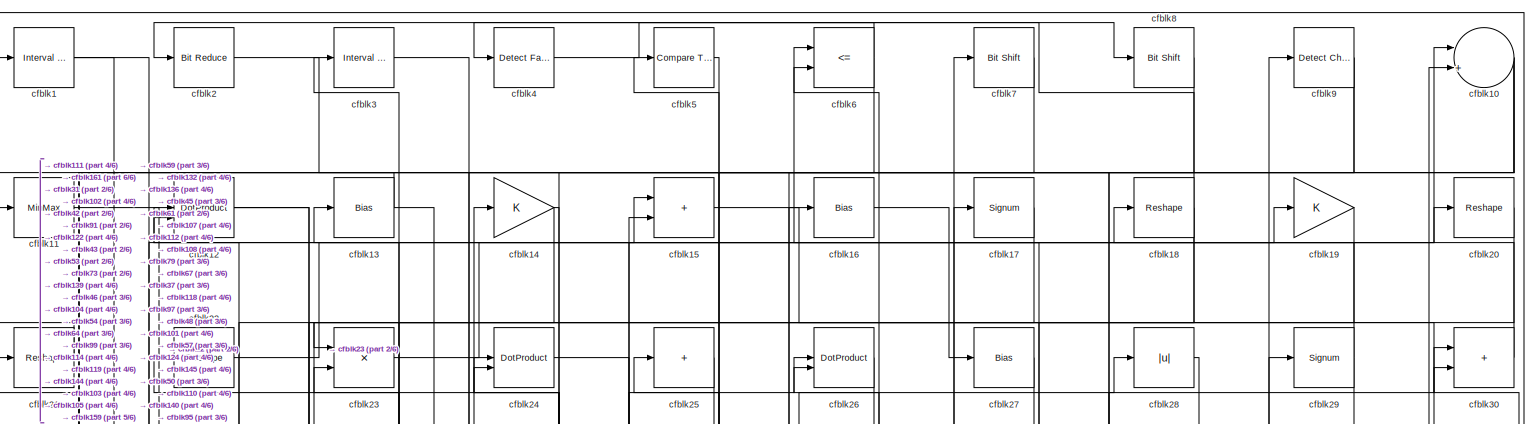
[diagram: root canvas - part 1/6, full width, top band]
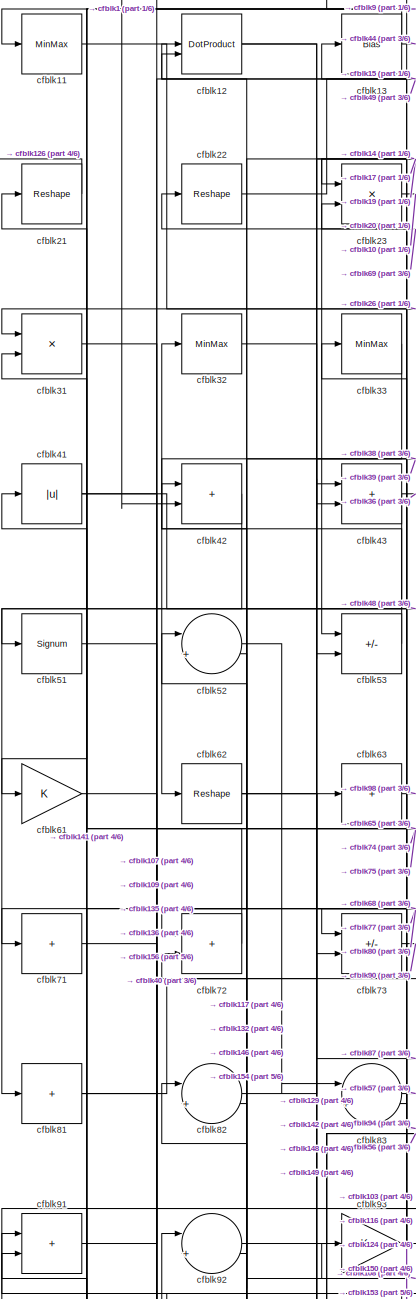
[diagram: root canvas - part 2/6, top left region]
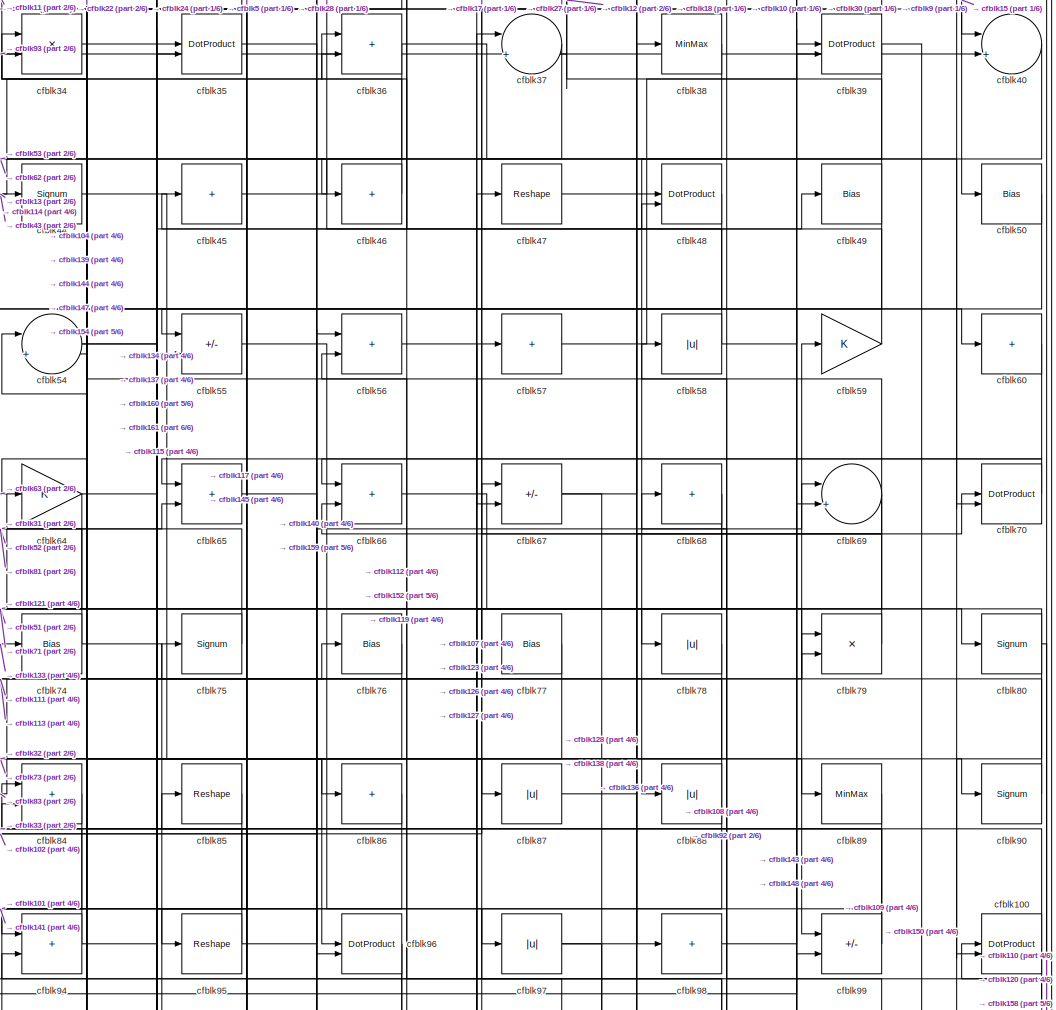
[diagram: root canvas - part 3/6, central region]
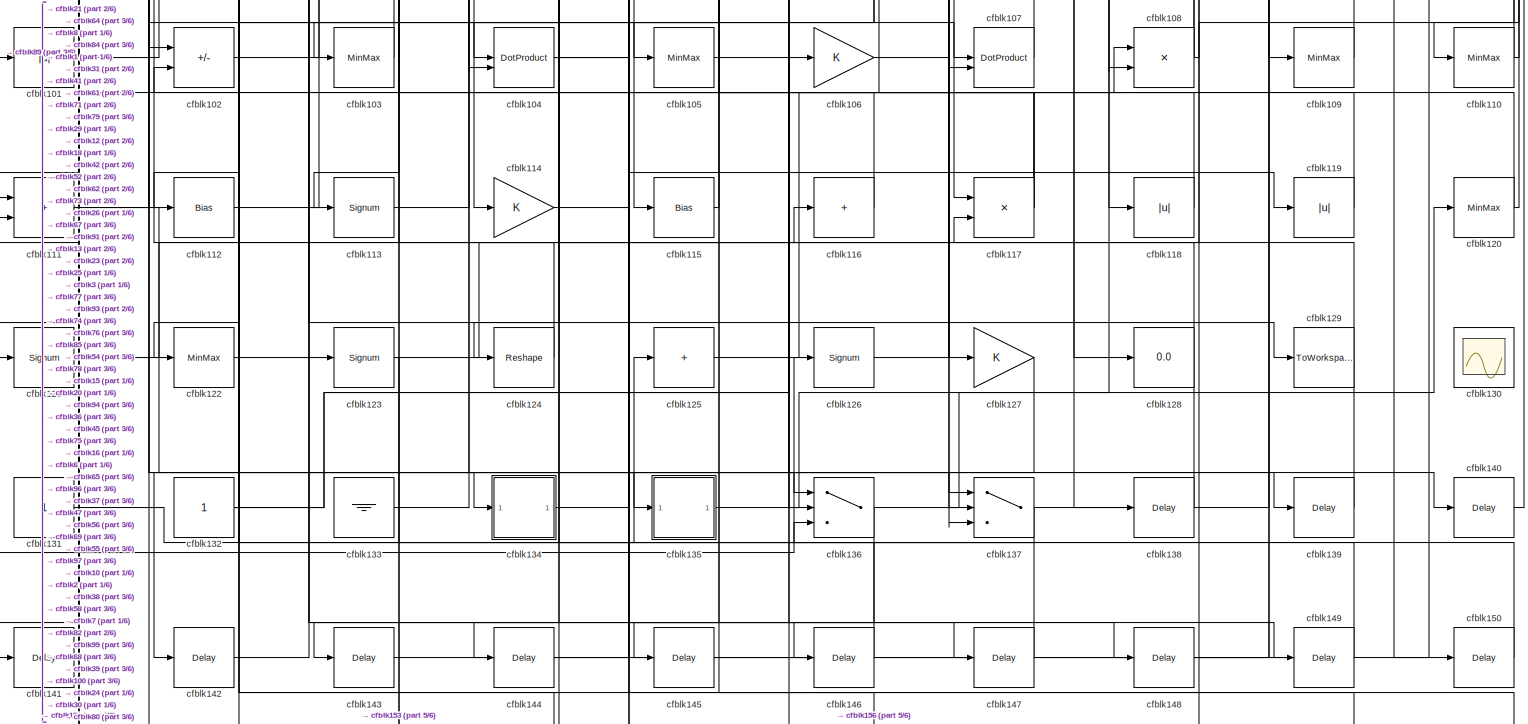
[diagram: root canvas - part 4/6, full width, bottom band]
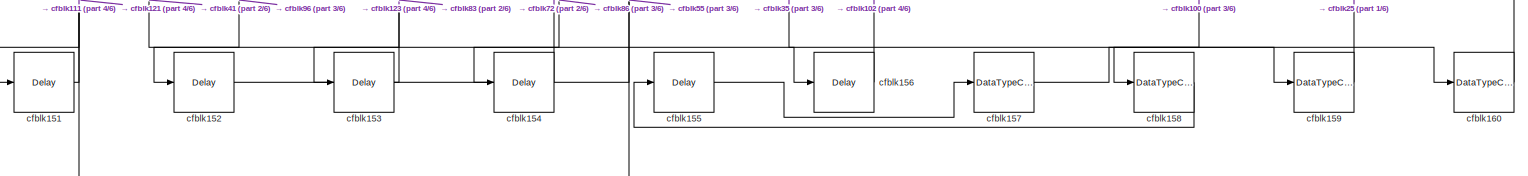
[diagram: root canvas - part 5/6, full width, bottom band]
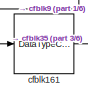
[diagram: root canvas - part 6/6, bottom left region]
MODEL slx_7f86ef3b494e
KIND model
CONFIG AbsTol = auto
CONFIG EnableMultiTasking = off
CONFIG FixedStep = auto
CONFIG MaxStep = auto
CONFIG MinStep = auto
CONFIG RelTol = 1e-3
CONFIG SampleTimeConstraint = Unconstrained
CONFIG SolverName = VariableStepAuto
CONFIG StartTime = 0.0
CONFIG StopTime = 10.0
BLOCK [Reference] cfblk1  REF=hdlsllib/Logic and Bit
Operations/Interval Test
  SourceBlock = hdlsllib/Logic and Bit\nOperations/Interval Test
  SourceType = Interval Test
BLOCK [Sum] cfblk10
  Inputs = |++
BLOCK [DotProduct] cfblk100
  OutDataTypeStr = Inherit: Inherit via internal rule
BLOCK [Abs] cfblk101
  SaturateOnIntegerOverflow = off
BLOCK [Sum] cfblk102
  IconShape = rectangular
  Inputs = +-
BLOCK [MinMax] cfblk103
BLOCK [DotProduct] cfblk104
  OutDataTypeStr = Inherit: Inherit via internal rule
BLOCK [MinMax] cfblk105
BLOCK [Gain] cfblk106
BLOCK [DotProduct] cfblk107
  OutDataTypeStr = Inherit: Inherit via internal rule
BLOCK [Product] cfblk108
  Inputs = */
  RndMeth = Zero
  SaturateOnIntegerOverflow = on
BLOCK [MinMax] cfblk109
BLOCK [MinMax] cfblk11
BLOCK [MinMax] cfblk110
BLOCK [Sum] cfblk111
  IconShape = rectangular
BLOCK [Bias] cfblk112
  Bias = 0.0
  SaturateOnIntegerOverflow = off
BLOCK [Signum] cfblk113
BLOCK [Gain] cfblk114
BLOCK [Bias] cfblk115
  Bias = 0.0
  SaturateOnIntegerOverflow = off
BLOCK [Sum] cfblk116
  IconShape = rectangular
  Inputs = +
BLOCK [Product] cfblk117
  Inputs = */
  RndMeth = Zero
  SaturateOnIntegerOverflow = on
BLOCK [Abs] cfblk118
  SaturateOnIntegerOverflow = off
BLOCK [Abs] cfblk119
  SaturateOnIntegerOverflow = off
BLOCK [DotProduct] cfblk12
  OutDataTypeStr = Inherit: Inherit via internal rule
BLOCK [MinMax] cfblk120
BLOCK [Signum] cfblk121
BLOCK [MinMax] cfblk122
BLOCK [Signum] cfblk123
BLOCK [Reshape] cfblk124
BLOCK [Sum] cfblk125
  IconShape = rectangular
  Inputs = +
BLOCK [Signum] cfblk126
BLOCK [Gain] cfblk127
BLOCK [Display] cfblk128
  Decimation = 1
BLOCK [ToWorkspace] cfblk129
  MaxDataPoints = inf
  SampleTime = -1
  SaveFormat = Timeseries
  VariableName = simout
BLOCK [Bias] cfblk13
  Bias = 0.0
  SaturateOnIntegerOverflow = off
BLOCK [Scope] cfblk130
  Floating = on
  NumInputPorts = 1
  ScopeSpecificationString = Simulink.scopes.TimeScopeBlockCfg('CurrentConfiguration', extmgr.ConfigurationSet(extmgr.Configuration('Core','General UI',true,'FigureColor',[0.156862745098039 0.156862745098039 0.156862745098039]),extmgr.Configuration('Core','Source UI',true),extmgr.Configuration('Sources','WiredSimulink',true,'DataLoggingVariableName','ScopeData1','DataLoggingSaveFormat','StructureWithTime','DataLoggingLimitDat...<+2713ch>
BLOCK [Constant] cfblk131
  SampleTime = -1
BLOCK [Constant] cfblk132
  SampleTime = -1
BLOCK [Ground] cfblk133
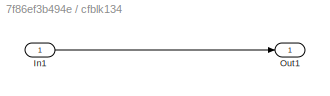
BLOCK [SubSystem] cfblk134
  LibrarySourceBlock = hdlsllib/Ports &\nSubsystems/Subsystem
BLOCK [Inport] cfblk134/In1
BLOCK [Outport] cfblk134/Out1
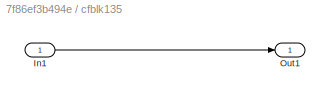
BLOCK [SubSystem] cfblk135
  LibrarySourceBlock = hdlsllib/Ports &\nSubsystems/Subsystem
BLOCK [Inport] cfblk135/In1
BLOCK [Outport] cfblk135/Out1
BLOCK [Switch] cfblk136
  InputSameDT = off
  SaturateOnIntegerOverflow = off
BLOCK [Switch] cfblk137
  InputSameDT = off
  SaturateOnIntegerOverflow = off
BLOCK [Delay] cfblk138
  InputPortMap = u0
  SampleTime = 1
BLOCK [Delay] cfblk139
  InputPortMap = u0
  SampleTime = 1
BLOCK [Gain] cfblk14
BLOCK [Delay] cfblk140
  InputPortMap = u0
  SampleTime = 1
BLOCK [Delay] cfblk141
  InputPortMap = u0
  SampleTime = 1
BLOCK [Delay] cfblk142
  InputPortMap = u0
  SampleTime = 1
BLOCK [Delay] cfblk143
  InputPortMap = u0
  SampleTime = 1
BLOCK [Delay] cfblk144
  InputPortMap = u0
  SampleTime = 1
BLOCK [Delay] cfblk145
  InputPortMap = u0
  SampleTime = 1
BLOCK [Delay] cfblk146
  InputPortMap = u0
  SampleTime = 1
BLOCK [Delay] cfblk147
  InputPortMap = u0
  SampleTime = 1
BLOCK [Delay] cfblk148
  InputPortMap = u0
  SampleTime = 1
BLOCK [Delay] cfblk149
  InputPortMap = u0
  SampleTime = 1
BLOCK [Sum] cfblk15
  IconShape = rectangular
BLOCK [Delay] cfblk150
  InputPortMap = u0
  SampleTime = 1
BLOCK [Delay] cfblk151
  InputPortMap = u0
  SampleTime = 1
BLOCK [Delay] cfblk152
  InputPortMap = u0
  SampleTime = 1
BLOCK [Delay] cfblk153
  InputPortMap = u0
  SampleTime = 1
BLOCK [Delay] cfblk154
  InputPortMap = u0
  SampleTime = 1
BLOCK [Delay] cfblk155
  InputPortMap = u0
  SampleTime = 1
BLOCK [Delay] cfblk156
  InputPortMap = u0
  SampleTime = 1
BLOCK [DataTypeConversion] cfblk157
  OutDataTypeStr = uint8
  RndMeth = Floor
  SaturateOnIntegerOverflow = off
BLOCK [DataTypeConversion] cfblk158
  OutDataTypeStr = uint8
  RndMeth = Floor
  SaturateOnIntegerOverflow = off
BLOCK [DataTypeConversion] cfblk159
  OutDataTypeStr = uint8
  RndMeth = Floor
  SaturateOnIntegerOverflow = off
BLOCK [Bias] cfblk16
  Bias = 0.0
  SaturateOnIntegerOverflow = off
BLOCK [DataTypeConversion] cfblk160
  OutDataTypeStr = uint8
  RndMeth = Floor
  SaturateOnIntegerOverflow = off
BLOCK [DataTypeConversion] cfblk161
  OutDataTypeStr = uint8
  RndMeth = Floor
  SaturateOnIntegerOverflow = off
BLOCK [Signum] cfblk17
BLOCK [Reshape] cfblk18
BLOCK [Gain] cfblk19
BLOCK [Reference] cfblk2  REF=hdlsllib/Logic and Bit
Operations/Bit Reduce
  SourceBlock = hdlsllib/Logic and Bit\nOperations/Bit Reduce
  SourceType = Bit Reduce
BLOCK [Reshape] cfblk20
BLOCK [Reshape] cfblk21
BLOCK [Reshape] cfblk22
BLOCK [Product] cfblk23
  Inputs = */
  RndMeth = Zero
  SaturateOnIntegerOverflow = on
BLOCK [DotProduct] cfblk24
  OutDataTypeStr = Inherit: Inherit via internal rule
BLOCK [Sum] cfblk25
  IconShape = rectangular
  Inputs = +
BLOCK [DotProduct] cfblk26
  OutDataTypeStr = Inherit: Inherit via internal rule
BLOCK [Bias] cfblk27
  Bias = 0.0
  SaturateOnIntegerOverflow = off
BLOCK [Abs] cfblk28
  SaturateOnIntegerOverflow = off
BLOCK [Signum] cfblk29
BLOCK [Reference] cfblk3  REF=hdlsllib/Logic and Bit
Operations/Interval Test
  SourceBlock = hdlsllib/Logic and Bit\nOperations/Interval Test
  SourceType = Interval Test
BLOCK [Sum] cfblk30
  IconShape = rectangular
BLOCK [Product] cfblk31
  Inputs = */
  RndMeth = Zero
  SaturateOnIntegerOverflow = on
BLOCK [MinMax] cfblk32
BLOCK [MinMax] cfblk33
BLOCK [Product] cfblk34
  Inputs = */
  RndMeth = Zero
  SaturateOnIntegerOverflow = on
BLOCK [DotProduct] cfblk35
  OutDataTypeStr = Inherit: Inherit via internal rule
BLOCK [Sum] cfblk36
  IconShape = rectangular
BLOCK [Sum] cfblk37
  Inputs = |++
BLOCK [MinMax] cfblk38
BLOCK [DotProduct] cfblk39
  OutDataTypeStr = Inherit: Inherit via internal rule
BLOCK [Reference] cfblk4  REF=hdlsllib/Logic and Bit
Operations/Detect Fall
Nonpositive
  SourceBlock = hdlsllib/Logic and Bit\nOperations/Detect Fall\nNonpositive
  SourceType = Detect Fall Nonpositive
BLOCK [Sum] cfblk40
  Inputs = |++
BLOCK [Abs] cfblk41
  SaturateOnIntegerOverflow = off
BLOCK [Sum] cfblk42
  IconShape = rectangular
BLOCK [Sum] cfblk43
  IconShape = rectangular
BLOCK [Signum] cfblk44
BLOCK [Sum] cfblk45
  IconShape = rectangular
  Inputs = +
BLOCK [Sum] cfblk46
  IconShape = rectangular
  Inputs = +
BLOCK [Reshape] cfblk47
BLOCK [DotProduct] cfblk48
  OutDataTypeStr = Inherit: Inherit via internal rule
BLOCK [Bias] cfblk49
  Bias = 0.0
  SaturateOnIntegerOverflow = off
BLOCK [Reference] cfblk5  REF=hdlsllib/Logic and Bit
Operations/Compare
To Zero
  SourceBlock = hdlsllib/Logic and Bit\nOperations/Compare\nTo Zero
  SourceType = Compare To Zero
BLOCK [Bias] cfblk50
  Bias = 0.0
  SaturateOnIntegerOverflow = off
BLOCK [Signum] cfblk51
BLOCK [Sum] cfblk52
  Inputs = |++
BLOCK [Sum] cfblk53
  IconShape = rectangular
  Inputs = +-
BLOCK [Sum] cfblk54
  Inputs = |++
BLOCK [Sum] cfblk55
  IconShape = rectangular
  Inputs = +-
BLOCK [Sum] cfblk56
  IconShape = rectangular
BLOCK [Sum] cfblk57
  IconShape = rectangular
  Inputs = +
BLOCK [Abs] cfblk58
  SaturateOnIntegerOverflow = off
BLOCK [Gain] cfblk59
BLOCK [RelationalOperator] cfblk6
  InputSameDT = off
  Operator = <=
  OutDataTypeStr = boolean
BLOCK [Sum] cfblk60
  IconShape = rectangular
  Inputs = +
BLOCK [Gain] cfblk61
BLOCK [Reshape] cfblk62
BLOCK [Sum] cfblk63
  IconShape = rectangular
  Inputs = +
BLOCK [Gain] cfblk64
BLOCK [Sum] cfblk65
  IconShape = rectangular
BLOCK [Sum] cfblk66
  IconShape = rectangular
BLOCK [Sum] cfblk67
  IconShape = rectangular
  Inputs = +-
BLOCK [Sum] cfblk68
  IconShape = rectangular
  Inputs = +
BLOCK [Sum] cfblk69
  Inputs = |++
BLOCK [Reference] cfblk7  REF=hdlsllib/Logic and Bit
Operations/Bit Shift
  SourceBlock = hdlsllib/Logic and Bit\nOperations/Bit Shift
  SourceType = Bit Shift
BLOCK [DotProduct] cfblk70
  OutDataTypeStr = Inherit: Inherit via internal rule
BLOCK [Sum] cfblk71
  IconShape = rectangular
  Inputs = +
BLOCK [Sum] cfblk72
  IconShape = rectangular
BLOCK [Sum] cfblk73
  IconShape = rectangular
  Inputs = +-
BLOCK [Bias] cfblk74
  Bias = 0.0
  SaturateOnIntegerOverflow = off
BLOCK [Signum] cfblk75
BLOCK [Bias] cfblk76
  Bias = 0.0
  SaturateOnIntegerOverflow = off
BLOCK [Bias] cfblk77
  Bias = 0.0
  SaturateOnIntegerOverflow = off
BLOCK [Abs] cfblk78
  SaturateOnIntegerOverflow = off
BLOCK [Product] cfblk79
  Inputs = */
  RndMeth = Zero
  SaturateOnIntegerOverflow = on
BLOCK [Reference] cfblk8  REF=hdlsllib/Logic and Bit
Operations/Bit Shift
  SourceBlock = hdlsllib/Logic and Bit\nOperations/Bit Shift
  SourceType = Bit Shift
BLOCK [Signum] cfblk80
BLOCK [Sum] cfblk81
  IconShape = rectangular
  Inputs = +
BLOCK [Sum] cfblk82
  Inputs = |++
BLOCK [Sum] cfblk83
  Inputs = |++
BLOCK [Sum] cfblk84
  IconShape = rectangular
BLOCK [Reshape] cfblk85
BLOCK [Sum] cfblk86
  IconShape = rectangular
  Inputs = +
BLOCK [Abs] cfblk87
  SaturateOnIntegerOverflow = off
BLOCK [Abs] cfblk88
  SaturateOnIntegerOverflow = off
BLOCK [MinMax] cfblk89
BLOCK [Reference] cfblk9  REF=simulink/Logic and Bit
Operations/Detect
Change
  LibrarySourceBlock = hdlsllib/Logic and Bit\nOperations/Detect\nChange
  SourceBlock = simulink/Logic and Bit\nOperations/Detect\nChange
  SourceType = Detect Change
BLOCK [Signum] cfblk90
BLOCK [Sum] cfblk91
  IconShape = rectangular
BLOCK [Sum] cfblk92
  Inputs = |++
BLOCK [Gain] cfblk93
BLOCK [Sum] cfblk94
  IconShape = rectangular
BLOCK [Reshape] cfblk95
BLOCK [DotProduct] cfblk96
  OutDataTypeStr = Inherit: Inherit via internal rule
BLOCK [Abs] cfblk97
  SaturateOnIntegerOverflow = off
BLOCK [Sum] cfblk98
  IconShape = rectangular
  Inputs = +
BLOCK [Sum] cfblk99
  IconShape = rectangular
  Inputs = +-
NET cfblk100:1 -> cfblk158:1, cfblk34:1
LINE cfblk101:1 -> cfblk29:1
LINE cfblk102:1 -> cfblk67:1
LINE cfblk103:1 -> cfblk91:1
NET cfblk104:1 -> cfblk146:1, cfblk20:1
LINE cfblk105:1 -> cfblk147:1
LINE cfblk106:1 -> cfblk137:1
LINE cfblk107:1 -> cfblk6:1
NET cfblk108:1 -> cfblk58:1, cfblk7:1, cfblk82:2
LINE cfblk109:1 -> cfblk68:1
NET cfblk10:1 -> cfblk104:2, cfblk108:2, cfblk64:1
NET cfblk110:1 -> cfblk24:1, cfblk30:1
NET cfblk111:1 -> cfblk134:1, cfblk79:2
LINE cfblk112:1 -> cfblk26:1
LINE cfblk113:1 -> cfblk76:1
LINE cfblk114:1 -> cfblk26:2
LINE cfblk115:1 -> cfblk45:1
LINE cfblk116:1 -> cfblk93:1
NET cfblk117:1 -> cfblk12:2, cfblk21:1, cfblk85:1
LINE cfblk118:1 -> cfblk3:1
LINE cfblk119:1 -> cfblk56:2
LINE cfblk11:1 -> cfblk40:1
NET cfblk120:1 -> cfblk100:1, cfblk75:1
NET cfblk121:1 -> cfblk116:1, cfblk151:1
LINE cfblk122:1 -> cfblk123:1
NET cfblk123:1 -> cfblk153:1, cfblk37:1
LINE cfblk124:1 -> cfblk13:1
LINE cfblk125:1 -> cfblk108:1
LINE cfblk126:1 -> cfblk47:1
LINE cfblk127:1 -> cfblk142:1
NET cfblk12:1 -> cfblk129:1, cfblk80:1
LINE cfblk131:1 -> cfblk125:1
NET cfblk132:1 -> cfblk106:1, cfblk16:1, cfblk42:1
LINE cfblk133:1 -> cfblk74:1
LINE cfblk134/In1:1 -> cfblk134/Out1:1
LINE cfblk134:1 -> cfblk79:1
LINE cfblk135/In1:1 -> cfblk135/Out1:1
LINE cfblk135:1 -> cfblk120:1
NET cfblk136:1 -> cfblk143:1, cfblk38:1
NET cfblk137:1 -> cfblk136:3, cfblk99:2
LINE cfblk138:1 -> cfblk117:2
LINE cfblk139:1 -> cfblk94:2
NET cfblk13:1 -> cfblk11:1, cfblk44:1
LINE cfblk140:1 -> cfblk1:1
LINE cfblk141:1 -> cfblk91:2
LINE cfblk142:1 -> cfblk73:2
LINE cfblk143:1 -> cfblk69:2
LINE cfblk144:1 -> cfblk15:2
LINE cfblk145:1 -> cfblk10:2
LINE cfblk146:1 -> cfblk52:2
LINE cfblk147:1 -> cfblk54:1
LINE cfblk148:1 -> cfblk39:1
LINE cfblk149:1 -> cfblk82:1
NET cfblk14:1 -> cfblk54:2, cfblk73:1
LINE cfblk150:1 -> cfblk23:2
LINE cfblk151:1 -> cfblk111:2
LINE cfblk152:1 -> cfblk55:2
LINE cfblk153:1 -> cfblk83:2
LINE cfblk154:1 -> cfblk72:2
LINE cfblk155:1 -> cfblk157:1
LINE cfblk156:1 -> cfblk102:2
LINE cfblk157:1 -> cfblk160:1
LINE cfblk158:1 -> cfblk155:1
LINE cfblk159:1 -> cfblk25:1
LINE cfblk15:1 -> cfblk50:1
LINE cfblk160:1 -> cfblk35:1
LINE cfblk161:1 -> cfblk35:2
LINE cfblk16:1 -> cfblk27:1
LINE cfblk17:1 -> cfblk23:1
NET cfblk18:1 -> cfblk122:1, cfblk2:1, cfblk37:2
LINE cfblk19:1 -> cfblk53:1
NET cfblk1:1 -> cfblk102:1, cfblk42:2
LINE cfblk20:1 -> cfblk43:2
LINE cfblk21:1 -> cfblk126:1
LINE cfblk22:1 -> cfblk19:1
LINE cfblk23:1 -> cfblk10:1
LINE cfblk24:1 -> cfblk119:1
LINE cfblk25:1 -> cfblk103:1
LINE cfblk26:1 -> cfblk61:1
LINE cfblk27:1 -> cfblk67:2
LINE cfblk28:1 -> cfblk48:1
NET cfblk29:1 -> cfblk124:1, cfblk6:2
LINE cfblk2:1 -> cfblk118:1
LINE cfblk30:1 -> cfblk18:1
LINE cfblk31:1 -> cfblk107:1
LINE cfblk32:1 -> cfblk87:1
LINE cfblk33:1 -> cfblk72:1
LINE cfblk34:1 -> cfblk86:1
LINE cfblk35:1 -> cfblk159:1
NET cfblk36:1 -> cfblk145:1, cfblk70:2
LINE cfblk37:1 -> cfblk46:1
LINE cfblk38:1 -> cfblk53:2
NET cfblk39:1 -> cfblk150:1, cfblk62:1
LINE cfblk3:1 -> cfblk139:1
LINE cfblk40:1 -> cfblk92:1
NET cfblk41:1 -> cfblk109:1, cfblk156:1
LINE cfblk42:1 -> cfblk81:1
NET cfblk43:1 -> cfblk36:1, cfblk51:1
LINE cfblk44:1 -> cfblk96:1
LINE cfblk45:1 -> cfblk28:1
LINE cfblk46:1 -> cfblk14:1
LINE cfblk47:1 -> cfblk88:1
LINE cfblk48:1 -> cfblk92:2
NET cfblk49:1 -> cfblk12:1, cfblk94:1
LINE cfblk4:1 -> cfblk8:1
LINE cfblk50:1 -> cfblk55:1
LINE cfblk51:1 -> cfblk77:1
LINE cfblk52:1 -> cfblk83:1
LINE cfblk53:1 -> cfblk32:1
NET cfblk54:1 -> cfblk89:1, cfblk96:2
LINE cfblk55:1 -> cfblk117:1
LINE cfblk56:1 -> cfblk127:1
LINE cfblk57:1 -> cfblk9:1
NET cfblk58:1 -> cfblk36:2, cfblk60:1
LINE cfblk59:1 -> cfblk5:1
LINE cfblk5:1 -> cfblk95:1
LINE cfblk60:1 -> cfblk66:1
LINE cfblk61:1 -> cfblk136:1
NET cfblk62:1 -> cfblk148:1, cfblk149:1
LINE cfblk63:1 -> cfblk98:1
NET cfblk64:1 -> cfblk121:1, cfblk48:2
LINE cfblk65:1 -> cfblk140:1
LINE cfblk66:1 -> cfblk99:1
NET cfblk67:1 -> cfblk128:1, cfblk49:1
NET cfblk68:1 -> cfblk107:2, cfblk71:1
NET cfblk69:1 -> cfblk137:3, cfblk22:1, cfblk66:2
NET cfblk6:1 -> cfblk136:2, cfblk4:1
LINE cfblk70:1 -> cfblk65:1
LINE cfblk71:1 -> cfblk135:1
LINE cfblk72:1 -> cfblk41:1
LINE cfblk73:1 -> cfblk90:1
NET cfblk74:1 -> cfblk115:1, cfblk31:2
LINE cfblk75:1 -> cfblk52:1
LINE cfblk76:1 -> cfblk144:1
LINE cfblk77:1 -> cfblk113:1
LINE cfblk78:1 -> cfblk104:1
LINE cfblk79:1 -> cfblk17:1
LINE cfblk7:1 -> cfblk105:1
NET cfblk80:1 -> cfblk100:2, cfblk110:1, cfblk78:1
NET cfblk81:1 -> cfblk43:1, cfblk65:2
LINE cfblk82:1 -> cfblk63:1
LINE cfblk83:1 -> cfblk57:1
LINE cfblk84:1 -> cfblk141:1
LINE cfblk85:1 -> cfblk114:1
LINE cfblk86:1 -> cfblk154:1
LINE cfblk87:1 -> cfblk70:1
NET cfblk88:1 -> cfblk34:2, cfblk97:1
LINE cfblk89:1 -> cfblk101:1
LINE cfblk8:1 -> cfblk111:1
LINE cfblk90:1 -> cfblk59:1
LINE cfblk91:1 -> cfblk15:1
LINE cfblk92:1 -> cfblk56:1
LINE cfblk93:1 -> cfblk40:2
NET cfblk94:1 -> cfblk137:2, cfblk33:1
NET cfblk95:1 -> cfblk69:1, cfblk84:2
NET cfblk96:1 -> cfblk112:1, cfblk152:1
NET cfblk97:1 -> cfblk138:1, cfblk30:2
LINE cfblk98:1 -> cfblk39:2
NET cfblk99:1 -> cfblk24:2, cfblk84:1
NET cfblk9:1 -> cfblk161:1, cfblk31:1
note: NET lines group one-source signal fan-out (src -> all destinations, sorted); 1:1 wires keep LINE
